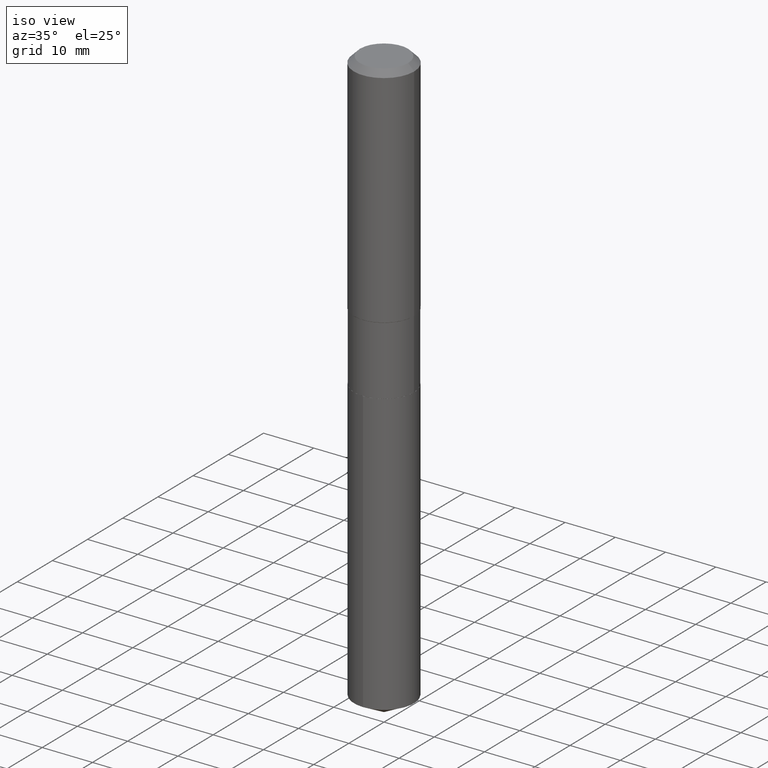
[diagram: clean part render]
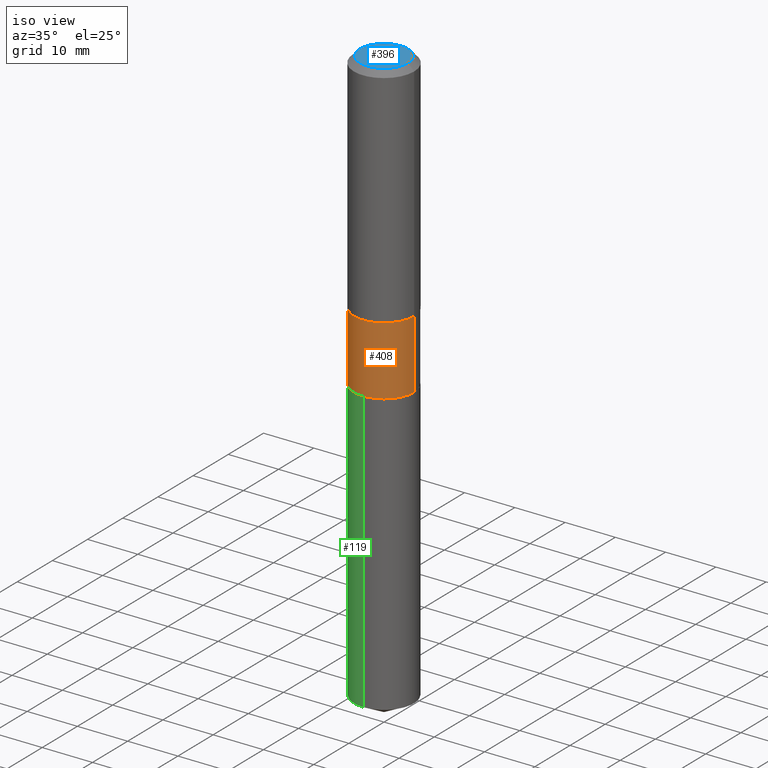
[diagram: same view with three faces highlighted in distinct colors, each labeled with its STEP entity id]
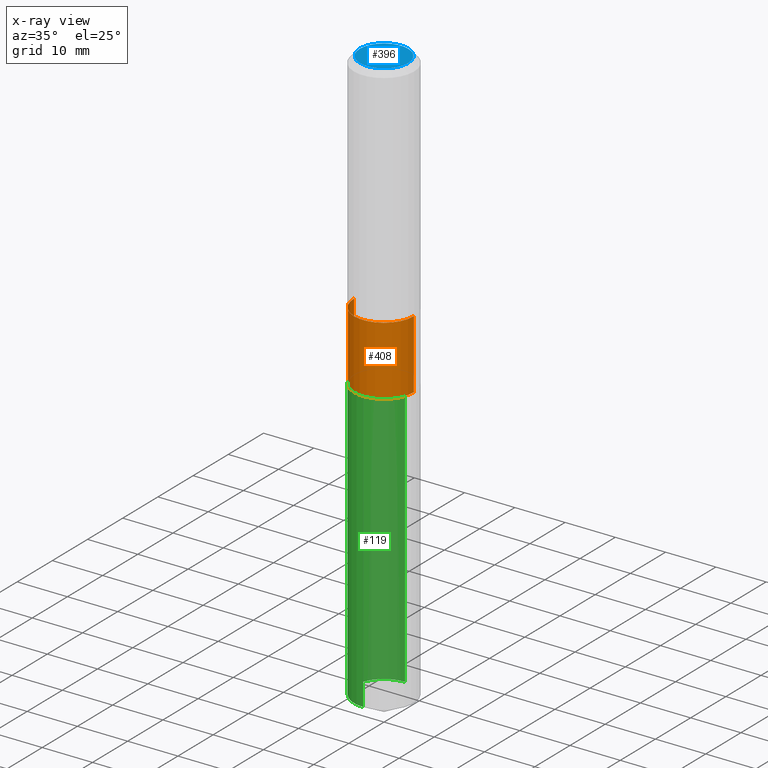
[diagram: x-ray of the same camera — body ghosted, the three highlighted faces saturated]
A machine part, iso view with three faces highlighted in distinct colors.
The next image is the same camera in x-ray (body ghosted, the three faces saturated) — at least one of them is partly hidden behind the body in this view.
Their STEP definitions:

[orange] entity #408 — the highlighted cylindrical surface (edge-blend (fillet) strip) has radius 5.9538 mm, axis along (-0, 0, 1).
#7 = CARTESIAN_POINT ( 'NONE',  ( 0.2343999999999999695, -1.636806451649660713E-15, 1.142975836246567155E-29 ) ) ;
#19 = CARTESIAN_POINT ( 'NONE',  ( -0.2343999999999999417, -5.492024572006774200E-15, -1.780699999999999950 ) ) ;
#21 = VERTEX_POINT ( 'NONE', #251 ) ;
#23 = AXIS2_PLACEMENT_3D ( 'NONE', #101, #204, #469 ) ;
#32 = VERTEX_POINT ( 'NONE', #141 ) ;
#41 = FACE_OUTER_BOUND ( 'NONE', #222, .T. ) ;
#43 = EDGE_CURVE ( 'NONE', #21, #286, #264, .T. ) ;
#53 = CARTESIAN_POINT ( 'NONE',  ( 4.354646303173872369E-29, -6.217280820077988934E-15, -1.780699999999999950 ) ) ;
#56 = EDGE_CURVE ( 'NONE', #286, #32, #203, .T. ) ;
#57 = AXIS2_PLACEMENT_3D ( 'NONE', #156, #300, #295 ) ;
#79 = DIRECTION ( 'NONE',  ( -2.445468806185136877E-29, 3.491481338843145188E-15, 1.000000000000000000 ) ) ;
#87 = VECTOR ( 'NONE', #79, 39.37007874015748143 ) ;
#101 = CARTESIAN_POINT ( 'NONE',  ( 5.671775802185187790E-29, -8.097792669178907520E-15, -2.319300000000000139 ) ) ;
#104 = EDGE_CURVE ( 'NONE', #324, #32, #232, .T. ) ;
#141 = CARTESIAN_POINT ( 'NONE',  ( 0.2343999999999999417, -7.854087271727649845E-15, -1.780699999999999950 ) ) ;
#144 = CARTESIAN_POINT ( 'NONE',  ( 0.2343999999999999972, -9.734599120828569220E-15, -2.319300000000000139 ) ) ;
#156 = CARTESIAN_POINT ( 'NONE',  ( 0.000000000000000000, 0.000000000000000000, 0.000000000000000000 ) ) ;
#195 = ORIENTED_EDGE ( 'NONE', *, *, #349, .F. ) ;
#202 = DIRECTION ( 'NONE',  ( 1.000000000000000000, -6.982962677686267499E-15, 0.000000000000000000 ) ) ;
#203 = LINE ( 'NONE', #7, #314 ) ;
#204 = DIRECTION ( 'NONE',  ( -2.445468806185136597E-29, 3.491481338843145583E-15, 1.000000000000000000 ) ) ;
#220 = ORIENTED_EDGE ( 'NONE', *, *, #104, .F. ) ;
#222 = EDGE_LOOP ( 'NONE', ( #195, #261, #474, #220 ) ) ;
#232 = CIRCLE ( 'NONE', #356, 0.2343999999999999417 ) ;
#240 = DIRECTION ( 'NONE',  ( -2.445468806185136877E-29, 3.491481338843145188E-15, 1.000000000000000000 ) ) ;
#251 = CARTESIAN_POINT ( 'NONE',  ( -0.2344000000000000250, -5.492024572006774200E-15, -2.319300000000000139 ) ) ;
#261 = ORIENTED_EDGE ( 'NONE', *, *, #43, .T. ) ;
#262 = CARTESIAN_POINT ( 'NONE',  ( -0.2343999999999999695, 1.665512172621674619E-15, -1.152998385155749684E-29 ) ) ;
#264 = CIRCLE ( 'NONE', #23, 0.2343999999999999972 ) ;
#286 = VERTEX_POINT ( 'NONE', #144 ) ;
#295 = DIRECTION ( 'NONE',  ( 1.000000000000000000, -6.982962677686266711E-15, 4.876176775795935793E-29 ) ) ;
#300 = DIRECTION ( 'NONE',  ( -2.445468806185136597E-29, 3.491481338843145583E-15, 1.000000000000000000 ) ) ;
#314 = VECTOR ( 'NONE', #240, 39.37007874015748143 ) ;
#324 = VERTEX_POINT ( 'NONE', #19 ) ;
#334 = CYLINDRICAL_SURFACE ( 'NONE', #57, 0.2343999999999999695 ) ;
#349 = EDGE_CURVE ( 'NONE', #21, #324, #378, .T. ) ;
#356 = AXIS2_PLACEMENT_3D ( 'NONE', #53, #394, #202 ) ;
#378 = LINE ( 'NONE', #262, #87 ) ;
#394 = DIRECTION ( 'NONE',  ( -2.445468806185136597E-29, 3.491481338843145583E-15, 1.000000000000000000 ) ) ;
#408 = ADVANCED_FACE ( 'NONE', ( #41 ), #334, .T. ) ;
#469 = DIRECTION ( 'NONE',  ( 1.000000000000000000, -6.982962677686269866E-15, 0.000000000000000000 ) ) ;
#474 = ORIENTED_EDGE ( 'NONE', *, *, #56, .T. ) ;

[blue] entity #396 — the highlighted planar face has unit normal (0, -0, -1).
#1 = DIRECTION ( 'NONE',  ( -1.000000000000000000, 6.982962677686265922E-15, -4.876176775795935793E-29 ) ) ;
#20 = CARTESIAN_POINT ( 'NONE',  ( -9.427742298522546243E-47, 1.346031739168365344E-32, 3.855188123715862256E-18 ) ) ;
#31 = EDGE_CURVE ( 'NONE', #113, #98, #339, .T. ) ;
#46 = DIRECTION ( 'NONE',  ( -2.445468806185136597E-29, 3.491481338843145583E-15, 1.000000000000000000 ) ) ;
#81 = CIRCLE ( 'NONE', #258, 0.1889600000000000168 ) ;
#86 = CARTESIAN_POINT ( 'NONE',  ( -0.1889600000000000168, 1.401969416799070942E-15, 3.855188123706346622E-18 ) ) ;
#98 = VERTEX_POINT ( 'NONE', #86 ) ;
#113 = VERTEX_POINT ( 'NONE', #205 ) ;
#118 = PLANE ( 'NONE',  #311 ) ;
#164 = EDGE_CURVE ( 'NONE', #98, #113, #81, .T. ) ;
#176 = DIRECTION ( 'NONE',  ( -2.445468806185136597E-29, 3.491481338843145583E-15, 1.000000000000000000 ) ) ;
#192 = FACE_OUTER_BOUND ( 'NONE', #217, .T. ) ;
#205 = CARTESIAN_POINT ( 'NONE',  ( 0.1889600000000000168, -1.540873453589747738E-15, 3.855188123725863225E-18 ) ) ;
#214 = ORIENTED_EDGE ( 'NONE', *, *, #164, .T. ) ;
#217 = EDGE_LOOP ( 'NONE', ( #214, #436 ) ) ;
#223 = CARTESIAN_POINT ( 'NONE',  ( -4.713871149261273121E-47, 6.730158695841826722E-33, 1.927594061857931128E-18 ) ) ;
#243 = CARTESIAN_POINT ( 'NONE',  ( -9.427742298522546243E-47, 1.346031739168365344E-32, 3.855188123715862256E-18 ) ) ;
#258 = AXIS2_PLACEMENT_3D ( 'NONE', #243, #46, #346 ) ;
#298 = DIRECTION ( 'NONE',  ( 2.438088387897960049E-29, -3.491481338843145188E-15, -1.000000000000000000 ) ) ;
#311 = AXIS2_PLACEMENT_3D ( 'NONE', #223, #298, #1 ) ;
#319 = DIRECTION ( 'NONE',  ( 1.000000000000000000, -6.982962677686266711E-15, 4.876185090822587894E-29 ) ) ;
#339 = CIRCLE ( 'NONE', #385, 0.1889600000000000168 ) ;
#346 = DIRECTION ( 'NONE',  ( 1.000000000000000000, -6.982962677686266711E-15, 4.876185090822587894E-29 ) ) ;
#385 = AXIS2_PLACEMENT_3D ( 'NONE', #20, #176, #319 ) ;
#396 = ADVANCED_FACE ( 'NONE', ( #192 ), #118, .F. ) ;
#436 = ORIENTED_EDGE ( 'NONE', *, *, #31, .T. ) ;

[green] entity #119 — the highlighted cylindrical surface (edge-blend (fillet) strip) has radius 5.9538 mm, axis along (-0, 0, 1).
#5 = EDGE_CURVE ( 'NONE', #34, #307, #400, .T. ) ;
#34 = VERTEX_POINT ( 'NONE', #285 ) ;
#39 = LINE ( 'NONE', #420, #304 ) ;
#40 = AXIS2_PLACEMENT_3D ( 'NONE', #309, #122, #268 ) ;
#50 = FACE_OUTER_BOUND ( 'NONE', #448, .T. ) ;
#55 = DIRECTION ( 'NONE',  ( -2.445322765975917676E-29, 3.491690476734839689E-15, 1.000000000000000000 ) ) ;
#62 = LINE ( 'NONE', #136, #425 ) ;
#71 = ORIENTED_EDGE ( 'NONE', *, *, #297, .F. ) ;
#84 = DIRECTION ( 'NONE',  ( -2.445322765975917676E-29, 3.491690476734839689E-15, 1.000000000000000000 ) ) ;
#102 = VERTEX_POINT ( 'NONE', #274 ) ;
#105 = ORIENTED_EDGE ( 'NONE', *, *, #210, .T. ) ;
#110 = AXIS2_PLACEMENT_3D ( 'NONE', #444, #55, #325 ) ;
#119 = ADVANCED_FACE ( 'NONE', ( #50 ), #428, .T. ) ;
#122 = DIRECTION ( 'NONE',  ( -2.445322765975917676E-29, 3.491690476734839689E-15, 1.000000000000000000 ) ) ;
#128 = CARTESIAN_POINT ( 'NONE',  ( 5.672998536588279470E-29, -8.099538409848329813E-15, -2.319799999999999862 ) ) ;
#136 = CARTESIAN_POINT ( 'NONE',  ( -1.636806451649603915E-15, -0.2344000000000081019, -2.319799999999998974 ) ) ;
#193 = DIRECTION ( 'NONE',  ( -2.445322765975917676E-29, 3.491690476734840083E-15, 1.000000000000000000 ) ) ;
#210 = EDGE_CURVE ( 'NONE', #307, #102, #62, .T. ) ;
#249 = DIRECTION ( 'NONE',  ( -2.445322765975917676E-29, 3.491690476734840083E-15, 1.000000000000000000 ) ) ;
#267 = CARTESIAN_POINT ( 'NONE',  ( 1.665512172621785257E-15, 0.2343999999999918649, -2.319800000000000750 ) ) ;
#268 = DIRECTION ( 'NONE',  ( -6.982962677686265922E-15, -1.000000000000000000, 2.330928322239132474E-15 ) ) ;
#274 = CARTESIAN_POINT ( 'NONE',  ( -1.636806451649603915E-15, -0.2344000000000081019, -2.319799999999998974 ) ) ;
#282 = ORIENTED_EDGE ( 'NONE', *, *, #353, .F. ) ;
#285 = CARTESIAN_POINT ( 'NONE',  ( 1.665512172621785454E-15, 0.2343999999999842321, -4.521367309218551789 ) ) ;
#297 = EDGE_CURVE ( 'NONE', #387, #102, #347, .T. ) ;
#304 = VECTOR ( 'NONE', #193, 39.37007874015748143 ) ;
#307 = VERTEX_POINT ( 'NONE', #435 ) ;
#309 = CARTESIAN_POINT ( 'NONE',  ( 1.105654119864874407E-28, -1.578673001733748720E-14, -4.521367309218550901 ) ) ;
#325 = DIRECTION ( 'NONE',  ( -6.982962677686265922E-15, -1.000000000000000000, 3.496392483358698711E-15 ) ) ;
#347 = CIRCLE ( 'NONE', #110, 0.2343999999999999972 ) ;
#353 = EDGE_CURVE ( 'NONE', #34, #387, #39, .T. ) ;
#387 = VERTEX_POINT ( 'NONE', #267 ) ;
#390 = DIRECTION ( 'NONE',  ( -6.982962677686265922E-15, -1.000000000000000000, 3.496392483358698711E-15 ) ) ;
#400 = CIRCLE ( 'NONE', #40, 0.2343999999999999972 ) ;
#420 = CARTESIAN_POINT ( 'NONE',  ( 1.665512172621731417E-15, 0.2343999999999918926, -2.319800000000000750 ) ) ;
#425 = VECTOR ( 'NONE', #249, 39.37007874015748143 ) ;
#428 = CYLINDRICAL_SURFACE ( 'NONE', #453, 0.2343999999999999972 ) ;
#435 = CARTESIAN_POINT ( 'NONE',  ( -1.636806451649550076E-15, -0.2344000000000157624, -4.521367309218549124 ) ) ;
#444 = CARTESIAN_POINT ( 'NONE',  ( 5.672998536588279470E-29, -8.099538409848329813E-15, -2.319799999999999862 ) ) ;
#448 = EDGE_LOOP ( 'NONE', ( #282, #488, #105, #71 ) ) ;
#453 = AXIS2_PLACEMENT_3D ( 'NONE', #128, #84, #390 ) ;
#488 = ORIENTED_EDGE ( 'NONE', *, *, #5, .T. ) ;